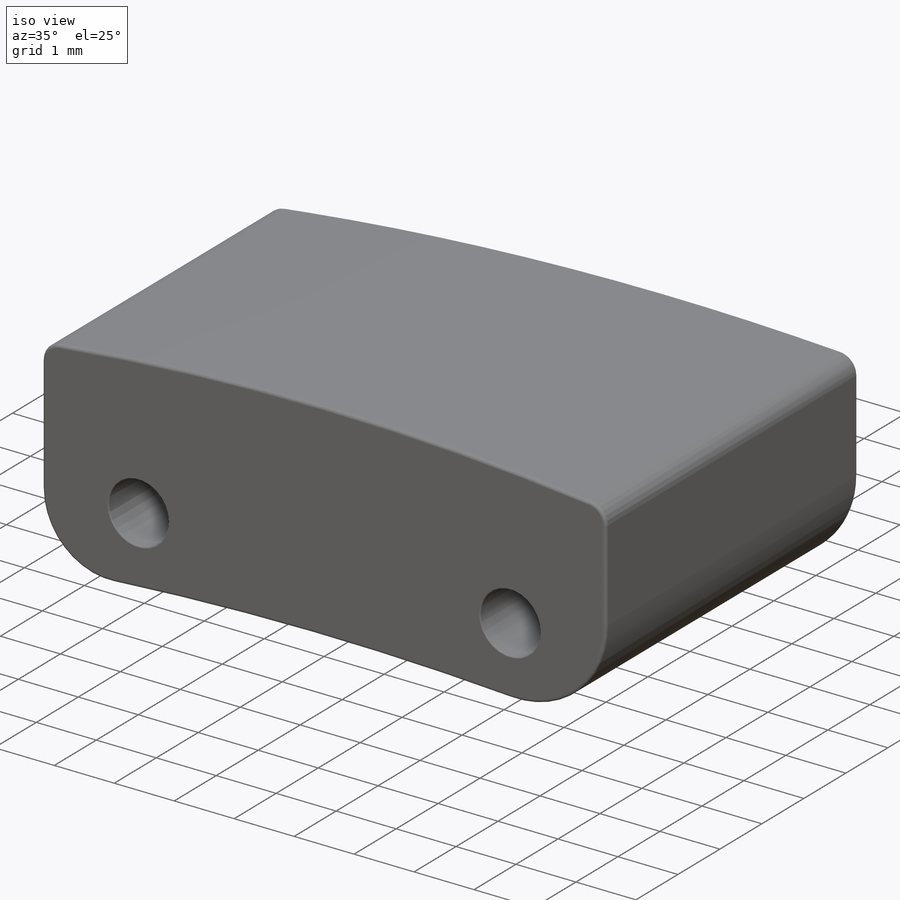
[diagram: iso view]
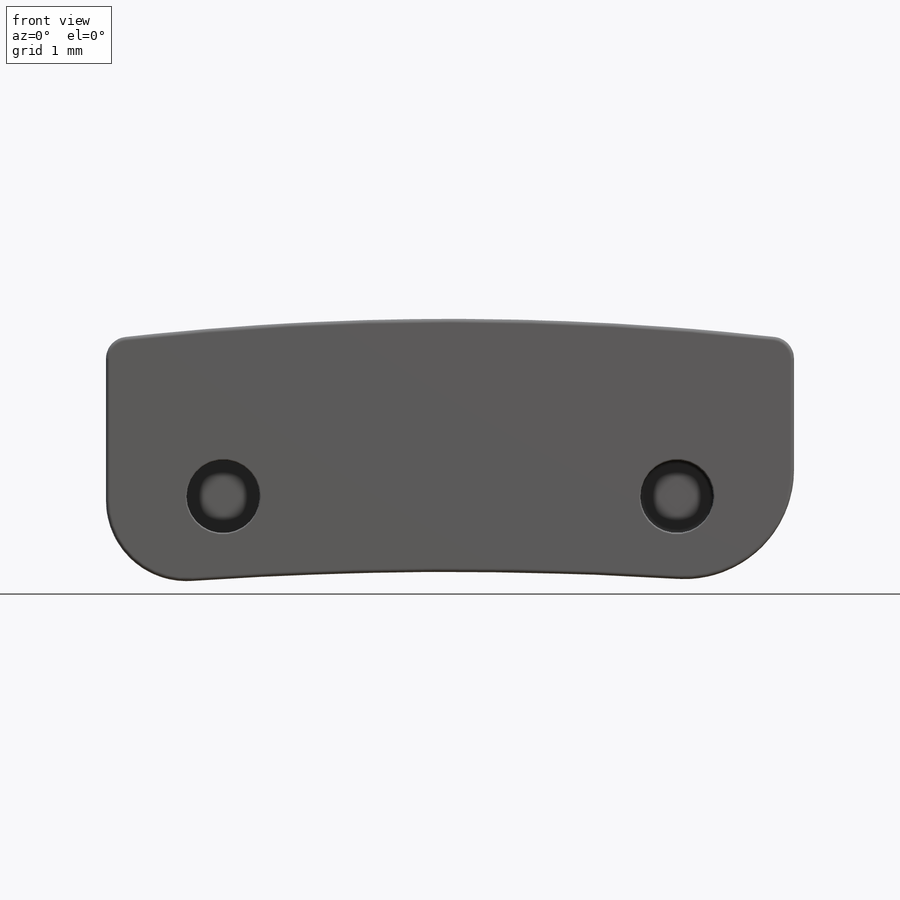
[diagram: front view]
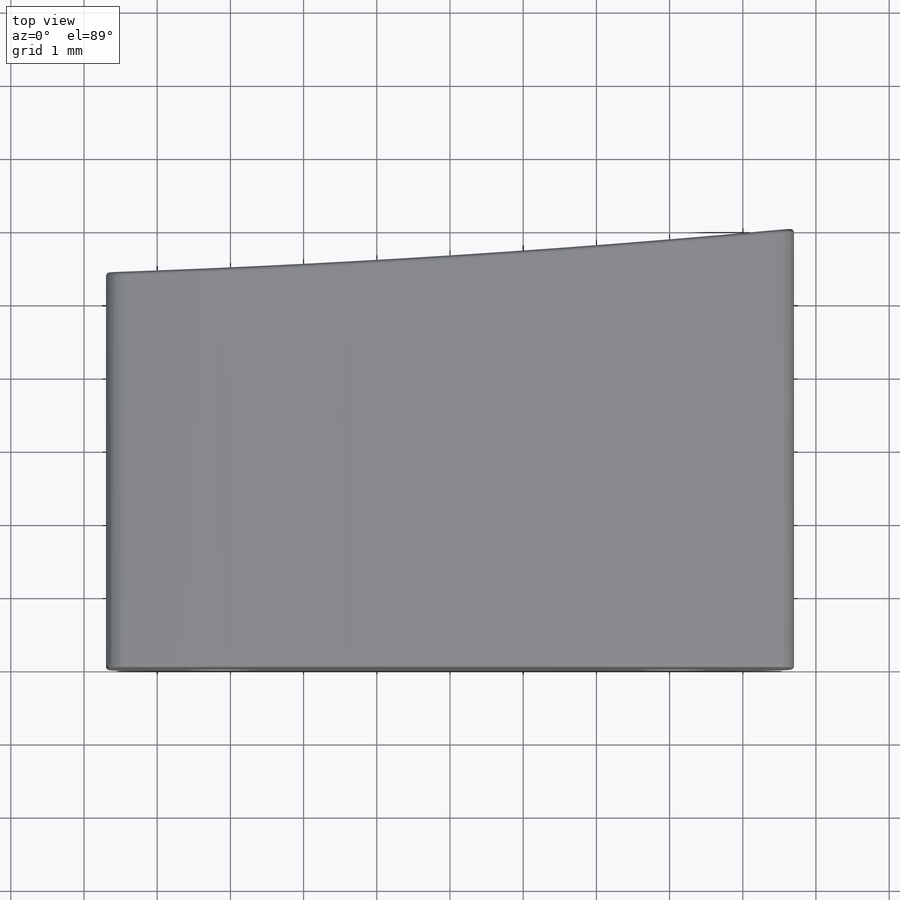
[diagram: top view]
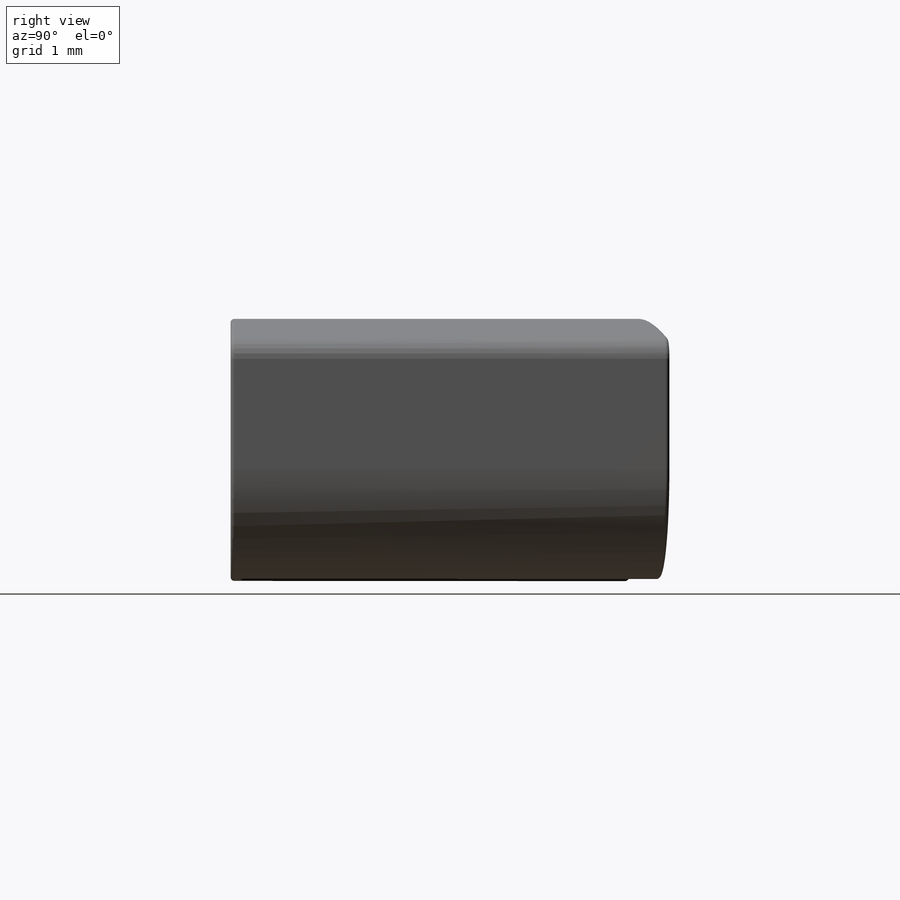
[diagram: right view]
SOLIDWORKS PART (.sldprt)
format: sldprt  version: not decoded by parser v0  size: 453,120 bytes
history: native  units: mm
features: fillet x6, sketch x5, cut_extrude x4, material x1, extrude x1 (+11 scaffold rows collapsed)
feature tree (28):
  scaffold x11  (default folders/planes/origin — collapsed)
  material  "Material <not specified>"
  sketch  "Sketch1"  dims[D1=9.4mm D2=3.7mm D3=1.85mm D4=4.7mm]
  extrude  "Boss-Extrude1"  Depth=6mm
  sketch  "Sketch2"  dims[D4=40.0mm D5=50.0mm D1=0.0mm D2=0.3mm D3=0.3mm]
  cut_extrude  "Cut-Extrude1"  Depth=15.6mm
  fillet  "Fillet1"  Radius=1.1mm
  fillet  "Fillet6"  Radius=1.5mm
  fillet  "Fillet2"  Radius=0.3mm
  sketch  "Sketch3"  dims[c1.D1=1.0mm c1.D3=1.0mm c1.D4=1.0mm c1.D5=1.0mm c1.D6=1.0mm c1.D2=3.1mm c2.D4=3.1mm c2.D5=0.6mm c2.D6=0.6mm]
  cut_extrude  "Cut-Extrude2"  Depth=3mm
  sketch  "Sketch4"  dims[c1.D5=150.0mm c1.D1=0.0mm c1.D2=0.0mm c1.D3=5.2mm c1.D4=5.6mm c2.D3=5.4mm c2.D4=6.0mm]
  cut_extrude  "Cut-Extrude3"  Depth=10mm
  fillet  "Fillet5"  Radius=0.05mm
  sketch  "Sketch5"  dims[c1.D1=~1.067991mm c1.D2=~1.067991mm c1.D3=0.8mm c2.D1=1.5mm c2.D2=4.0mm]
  cut_extrude  "Cut-Extrude5"  Depth=0.4mm
  fillet  "Fillet7"  Radius=0.05mm
  fillet  "Fillet8"  Radius=0.02mm
decode coverage: 16 of 16 modeling features carry decoded parameters
note: ~ marks probable driven/reference dimensions
note: suppression state not decoded; provenance and decode notes live in map.json
